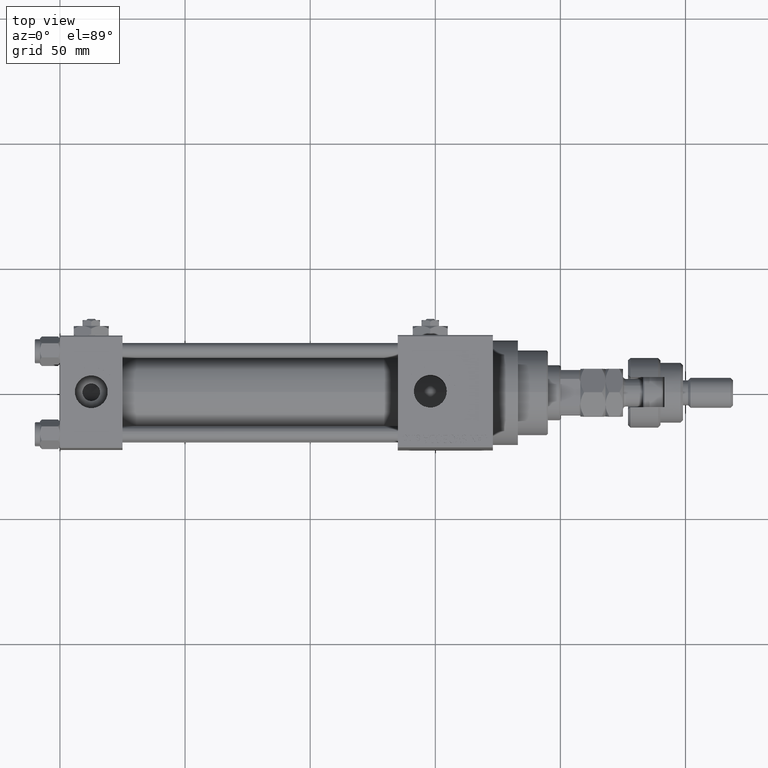
[diagram: clean part render]
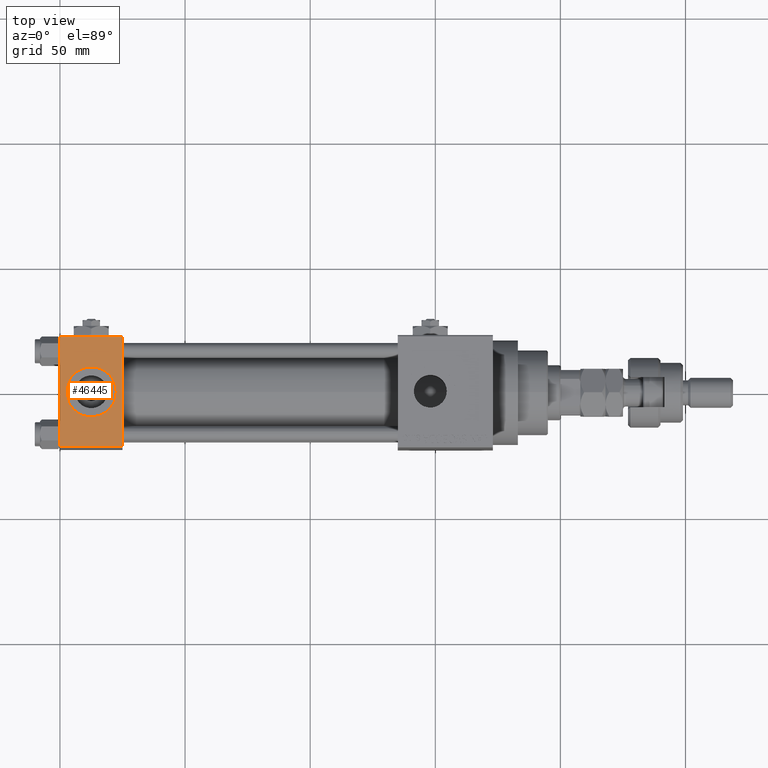
[diagram: same view with one face highlighted and labeled with its STEP entity id]
A machine part, top view. The second image highlights one B-rep face of the part: STEP entity #46445.
In plain terms, the highlighted planar face has unit normal (0, 0, -1).
Its self-contained STEP definition (entity closure, byte-faithful):
#341 = ORIENTED_EDGE ( 'NONE', *, *, #34996, .T. ) ;
#647 = VERTEX_POINT ( 'NONE', #9084 ) ;
#2880 = EDGE_CURVE ( 'NONE', #18589, #8462, #23464, .T. ) ;
#3327 = VERTEX_POINT ( 'NONE', #6731 ) ;
#3901 = DIRECTION ( 'NONE',  ( 0.000000000000000000, 7.709882115452476934E-17, -1.000000000000000000 ) ) ;
#4484 = CARTESIAN_POINT ( 'NONE',  ( 0.000000000000000000, 21.99999999999999289, 22.50000000000000355 ) ) ;
#6731 = CARTESIAN_POINT ( 'NONE',  ( 0.000000000000000000, 21.99999999999999289, 22.50000000000000355 ) ) ;
#8105 = FACE_BOUND ( 'NONE', #47566, .T. ) ;
#8462 = VERTEX_POINT ( 'NONE', #50693 ) ;
#9040 = CARTESIAN_POINT ( 'NONE',  ( 12.50000000000000000, -1.734723475976807094E-15, 22.50000000000000000 ) ) ;
#9084 = CARTESIAN_POINT ( 'NONE',  ( 25.00000000000000000, -21.99999999999997868, 22.50000000000000000 ) ) ;
#10105 = CARTESIAN_POINT ( 'NONE',  ( 22.50000000000000000, -1.734723475976807094E-15, 22.50000000000000000 ) ) ;
#10705 = VERTEX_POINT ( 'NONE', #32768 ) ;
#11615 = ORIENTED_EDGE ( 'NONE', *, *, #2880, .F. ) ;
#11793 = DIRECTION ( 'NONE',  ( 0.000000000000000000, 1.000000000000000000, 7.709882115452476934E-17 ) ) ;
#11863 = DIRECTION ( 'NONE',  ( -1.000000000000000000, 0.000000000000000000, 0.000000000000000000 ) ) ;
#12119 = ORIENTED_EDGE ( 'NONE', *, *, #17755, .T. ) ;
#12722 = CARTESIAN_POINT ( 'NONE',  ( 25.00000000000000000, -21.99999999999999289, 22.50000000000000000 ) ) ;
#12880 = DIRECTION ( 'NONE',  ( 1.000000000000000000, 0.000000000000000000, 0.000000000000000000 ) ) ;
#13257 = DIRECTION ( 'NONE',  ( 0.000000000000000000, 0.000000000000000000, 1.000000000000000000 ) ) ;
#15285 = VERTEX_POINT ( 'NONE', #35598 ) ;
#15454 = EDGE_CURVE ( 'NONE', #8462, #18589, #18920, .T. ) ;
#17197 = VECTOR ( 'NONE', #50734, 1000.000000000000000 ) ;
#17379 = AXIS2_PLACEMENT_3D ( 'NONE', #32305, #3901, #11793 ) ;
#17755 = EDGE_CURVE ( 'NONE', #3327, #15285, #25826, .T. ) ;
#18589 = VERTEX_POINT ( 'NONE', #10105 ) ;
#18920 = CIRCLE ( 'NONE', #32344, 9.999999999999998224 ) ;
#19245 = LINE ( 'NONE', #22930, #40986 ) ;
#20160 = ORIENTED_EDGE ( 'NONE', *, *, #50015, .F. ) ;
#21827 = AXIS2_PLACEMENT_3D ( 'NONE', #40476, #36547, #12880 ) ;
#22930 = CARTESIAN_POINT ( 'NONE',  ( 25.00000000000000000, 22.50000000000000000, 22.50000000000000355 ) ) ;
#23464 = CIRCLE ( 'NONE', #21827, 9.999999999999998224 ) ;
#25351 = DIRECTION ( 'NONE',  ( 1.000000000000000000, 0.000000000000000000, 0.000000000000000000 ) ) ;
#25826 = LINE ( 'NONE', #46812, #17197 ) ;
#27040 = EDGE_LOOP ( 'NONE', ( #12119, #341, #20160, #46382 ) ) ;
#28371 = FACE_OUTER_BOUND ( 'NONE', #27040, .T. ) ;
#29462 = ORIENTED_EDGE ( 'NONE', *, *, #15454, .F. ) ;
#29657 = VECTOR ( 'NONE', #48736, 1000.000000000000000 ) ;
#32305 = CARTESIAN_POINT ( 'NONE',  ( 25.00000000000000000, 22.50000000000000000, 22.50000000000000355 ) ) ;
#32344 = AXIS2_PLACEMENT_3D ( 'NONE', #9040, #13257, #25351 ) ;
#32768 = CARTESIAN_POINT ( 'NONE',  ( 25.00000000000000000, 21.99999999999999289, 22.50000000000000355 ) ) ;
#34139 = EDGE_CURVE ( 'NONE', #10705, #3327, #39464, .T. ) ;
#34996 = EDGE_CURVE ( 'NONE', #15285, #647, #44269, .T. ) ;
#35598 = CARTESIAN_POINT ( 'NONE',  ( 0.000000000000000000, -21.99999999999997868, 22.50000000000000000 ) ) ;
#35796 = DIRECTION ( 'NONE',  ( 0.000000000000000000, -1.000000000000000000, -7.709882115452476934E-17 ) ) ;
#36547 = DIRECTION ( 'NONE',  ( 0.000000000000000000, 0.000000000000000000, 1.000000000000000000 ) ) ;
#38014 = VECTOR ( 'NONE', #11863, 1000.000000000000000 ) ;
#39464 = LINE ( 'NONE', #4484, #38014 ) ;
#40476 = CARTESIAN_POINT ( 'NONE',  ( 12.50000000000000000, -1.734723475976807094E-15, 22.50000000000000000 ) ) ;
#40986 = VECTOR ( 'NONE', #35796, 1000.000000000000000 ) ;
#44269 = LINE ( 'NONE', #12722, #29657 ) ;
#46382 = ORIENTED_EDGE ( 'NONE', *, *, #34139, .T. ) ;
#46445 = ADVANCED_FACE ( 'NONE', ( #8105, #28371 ), #48056, .F. ) ;
#46812 = CARTESIAN_POINT ( 'NONE',  ( 0.000000000000000000, 22.50000000000000000, 22.50000000000000355 ) ) ;
#47566 = EDGE_LOOP ( 'NONE', ( #11615, #29462 ) ) ;
#48056 = PLANE ( 'NONE',  #17379 ) ;
#48736 = DIRECTION ( 'NONE',  ( 1.000000000000000000, 0.000000000000000000, 0.000000000000000000 ) ) ;
#50015 = EDGE_CURVE ( 'NONE', #10705, #647, #19245, .T. ) ;
#50693 = CARTESIAN_POINT ( 'NONE',  ( 2.500000000000003997, -5.100766768294543310E-16, 22.50000000000000000 ) ) ;
#50734 = DIRECTION ( 'NONE',  ( 0.000000000000000000, -1.000000000000000000, -7.709882115452476934E-17 ) ) ;